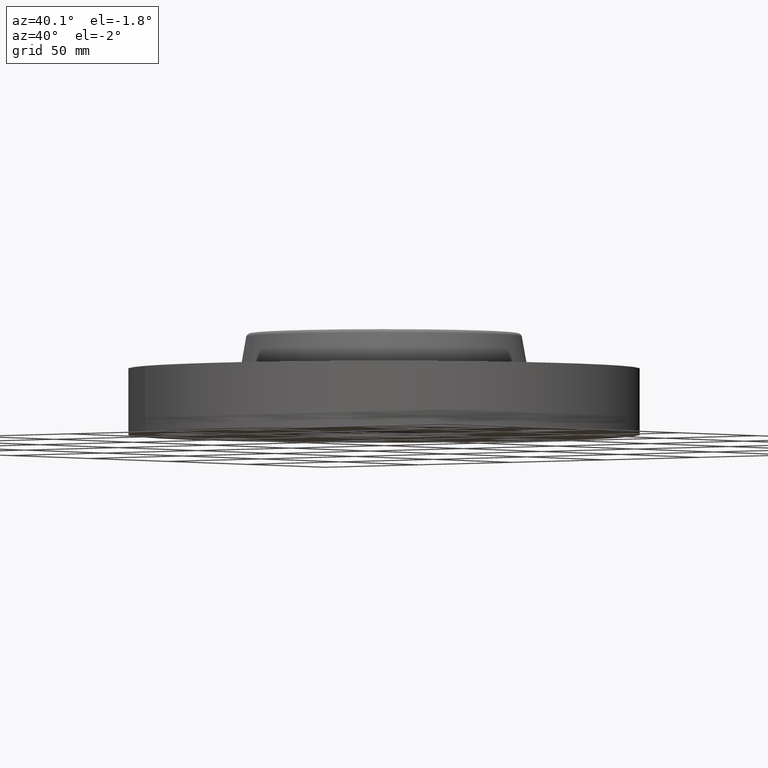
[diagram: clean part render]
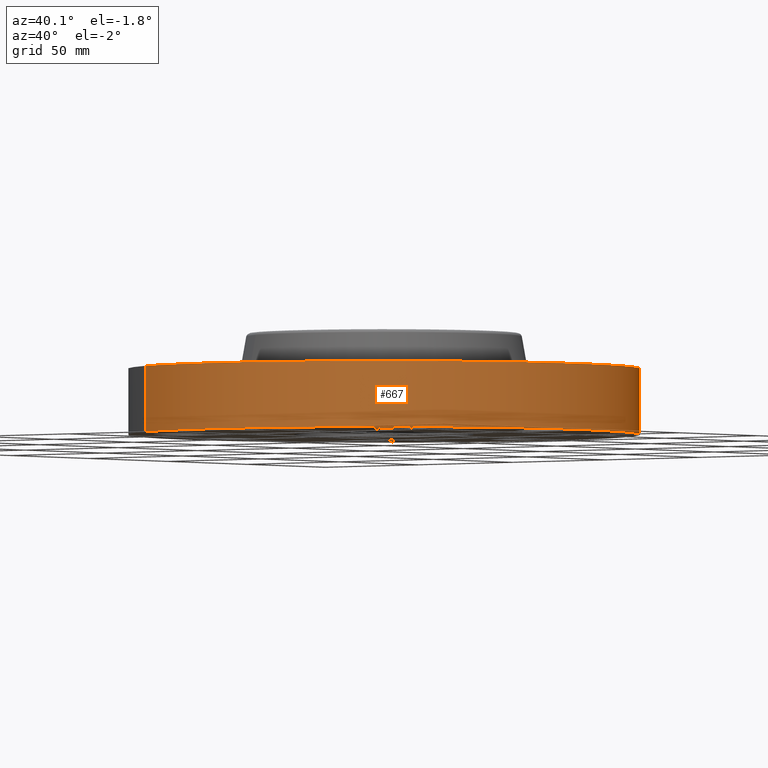
[diagram: same view with one face highlighted and labeled with its STEP entity id]
A machine part, auxiliary view. The second image highlights one B-rep face of the part: STEP entity #667.
In plain terms, the highlighted cylindrical surface (partial cylindrical patch) has radius 104.775 mm, axis along (0, 0, -1).
Its self-contained STEP definition (entity closure, byte-faithful):
#376=AXIS2_PLACEMENT_3D('Circle Axis2P3D',#374,#375,$) ;
#654=AXIS2_PLACEMENT_3D('Cylinder Axis2P3D',#651,#652,#653) ;
#658=AXIS2_PLACEMENT_3D('Circle Axis2P3D',#656,#657,$) ;
#369=CARTESIAN_POINT('Vertex',(-1.97763034678,-3.62002806781,0.)) ;
#371=CARTESIAN_POINT('Vertex',(1.97763034678,3.62002806783,0.)) ;
#374=CARTESIAN_POINT('Axis2P3D Location',(-1.1189649382E-015,7.06626358476E-012,0.)) ;
#606=CARTESIAN_POINT('Line Origine',(-1.97763034675,-3.62002806781,0.53)) ;
#610=CARTESIAN_POINT('Vertex',(-1.97763034675,-3.62002806781,1.05999999998)) ;
#629=CARTESIAN_POINT('Vertex',(1.97763034678,3.62002806783,1.06)) ;
#632=CARTESIAN_POINT('Line Origine',(1.97763034675,3.62002806781,0.53)) ;
#651=CARTESIAN_POINT('Axis2P3D Location',(0.,0.,0.815000000003)) ;
#656=CARTESIAN_POINT('Axis2P3D Location',(0.,0.,1.05999999998)) ;
#375=DIRECTION('Axis2P3D Direction',(0.,0.,-0.0393700787402)) ;
#607=DIRECTION('Vector Direction',(0.,0.,-0.0393700787402)) ;
#633=DIRECTION('Vector Direction',(0.,0.,-0.0393700787402)) ;
#652=DIRECTION('Axis2P3D Direction',(0.,0.,-0.0393700787402)) ;
#653=DIRECTION('Axis2P3D XDirection',(0.0188750212049,0.0345504945626,0.)) ;
#657=DIRECTION('Axis2P3D Direction',(0.,0.,-0.0393700787402)) ;
#608=VECTOR('Line Direction',#607,0.0393700787402) ;
#634=VECTOR('Line Direction',#633,0.0393700787402) ;
#662=ORIENTED_EDGE('',*,*,#378,.F.) ;
#663=ORIENTED_EDGE('',*,*,#636,.T.) ;
#664=ORIENTED_EDGE('',*,*,#660,.T.) ;
#665=ORIENTED_EDGE('',*,*,#612,.F.) ;
#667=ADVANCED_FACE('PartBody',(#666),#655,.T.) ;
#377=CIRCLE('generated circle',#376,4.12500000004) ;
#659=CIRCLE('generated circle',#658,4.12500000002) ;
#655=CYLINDRICAL_SURFACE('generated cylinder',#654,4.12500000002) ;
#378=EDGE_CURVE('',#372,#370,#377,.T.) ;
#612=EDGE_CURVE('',#370,#611,#609,.F.) ;
#636=EDGE_CURVE('',#372,#630,#635,.F.) ;
#660=EDGE_CURVE('',#630,#611,#659,.T.) ;
#661=EDGE_LOOP('',(#662,#663,#664,#665)) ;
#666=FACE_OUTER_BOUND('',#661,.T.) ;
#609=LINE('Line',#606,#608) ;
#635=LINE('Line',#632,#634) ;
#370=VERTEX_POINT('',#369) ;
#372=VERTEX_POINT('',#371) ;
#611=VERTEX_POINT('',#610) ;
#630=VERTEX_POINT('',#629) ;